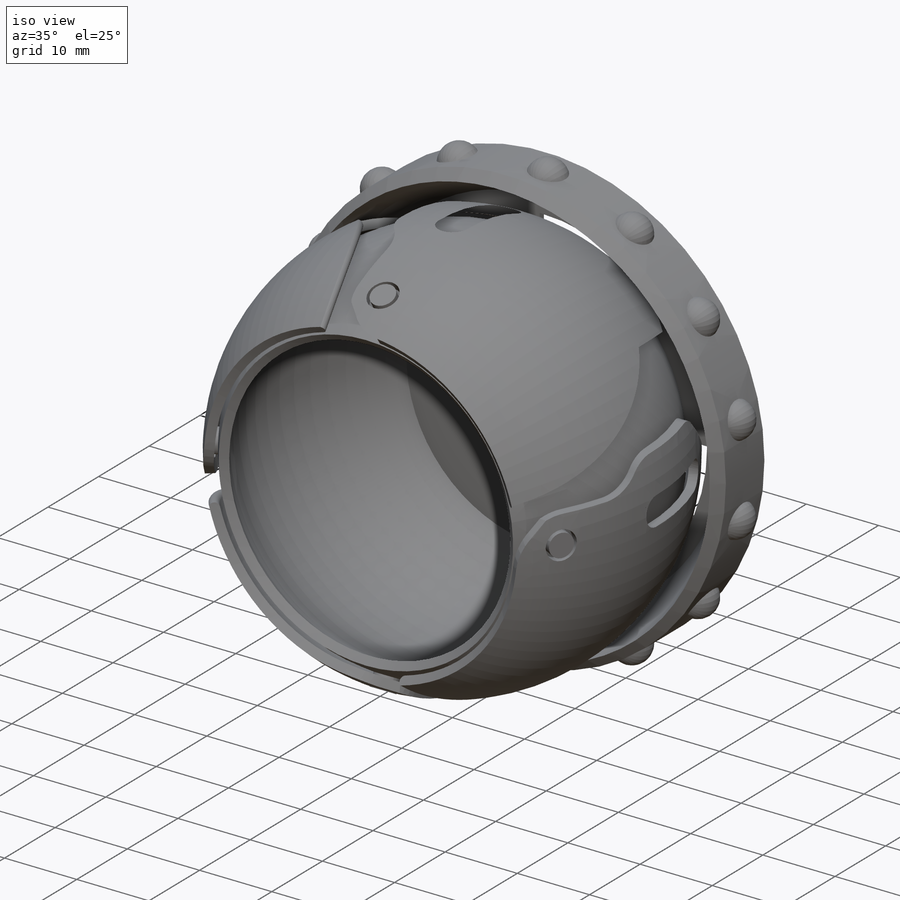
[diagram: iso view]
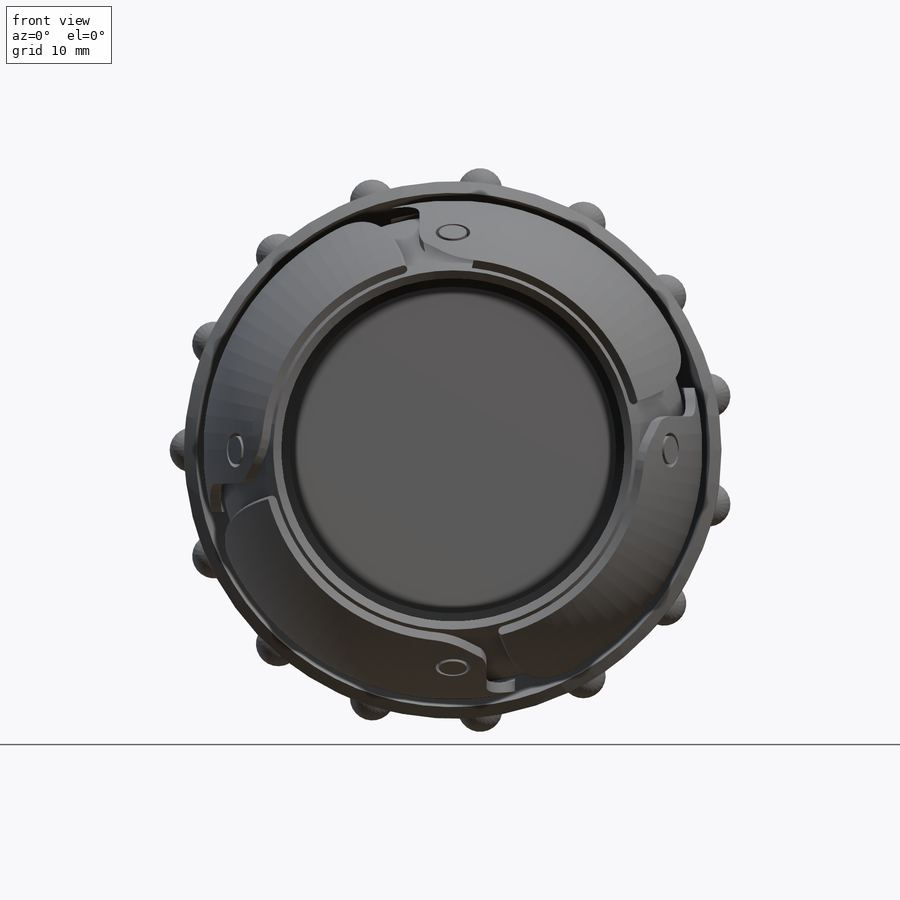
[diagram: front view]
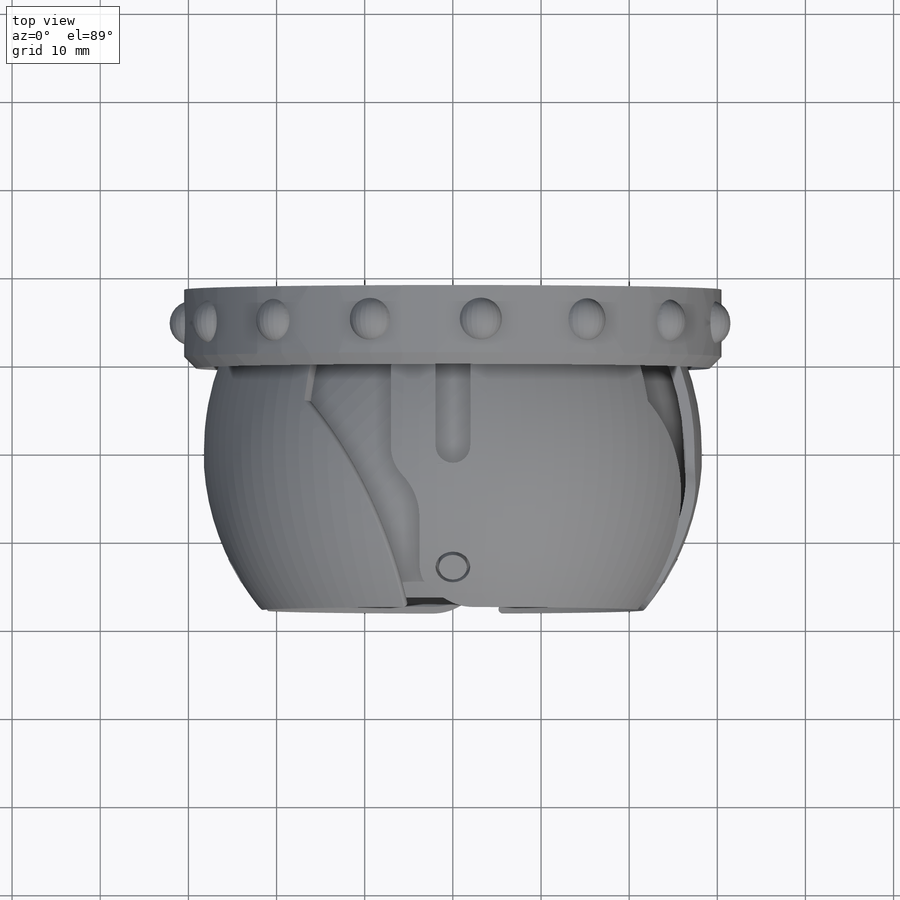
[diagram: top view]
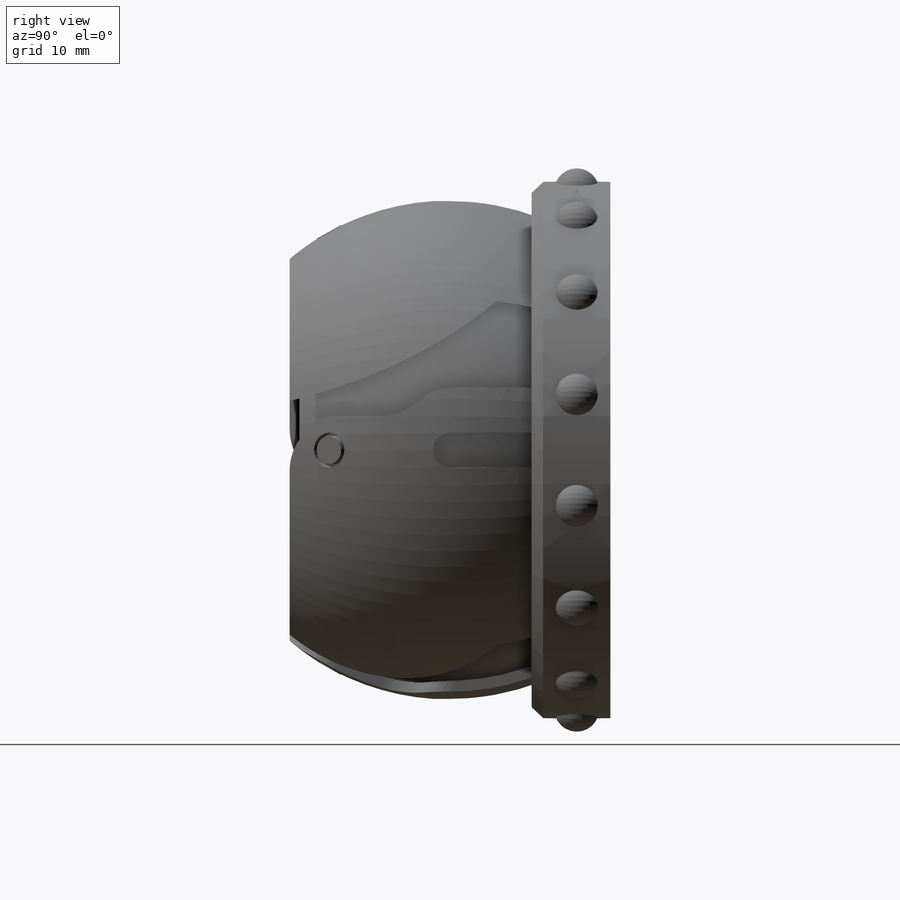
[diagram: right view]
SOLIDWORKS PART (.sldprt)
format: sldprt  version: not decoded by parser v0  size: 1,860,608 bytes
history: native  units: mm
features: sketch x18, revolve x7, plane x6, pattern_circular x6, cut_extrude x6, extrude x5, fillet x5, chamfer x3, material x1 (+11 scaffold rows collapsed)
feature tree (68):
  scaffold x11  (default folders/planes/origin — collapsed)
  material  "Material <not specified>"
  sketch  "Sketch1"  dims[c1.D1=~80.932191mm c1.D2=~57.865776mm c1.D3=~69.59016mm c1.D4=~59.465776mm c1.D5=~62.065776mm c1.D6=50.8mm c2.D1=1.0mm c2.D2=1.2mm c2.D3=1.2mm c2.D4=0.5mm c2.D5=0.7mm c2.D7=~19.393397mm c3.D7=50.0deg c3.D8=5.08mm c3.D9=12.7mm]
  revolve  "Revolve1"  Angle=360deg
  plane  "Plane1"
  sketch  "Sketch2"  dims[D1=3.175mm]
  extrude  "Boss-Extrude1"  Depth=1.7mm
  pattern_circular  "CirPattern1"  Count=4 Angle=360deg
  sketch  "Sketch3"
  revolve  "Revolve2"  Angle=360deg
  sketch  "Sketch4"  dims[c1.D2=49.53mm c1.D5=21.6662mm c1.D1=3.81mm c2.D2=~8.98762mm c2.D3=~28.45708mm c3.D3=40.0deg c3.D4=7.62mm c3.D6=20.2184mm c3.D7=~24.257085mm c4.D6=19.558mm c4.D4=~11.351091mm c4.D7=~0.143692mm c5.D4=~30.909091mm c6.D4=60.0deg]
  cut_extrude  "Cut-Extrude1"  [1 undecoded]
  sketch  "Sketch5"  dims[D1=0.381mm]
  cut_extrude  "Cut-Extrude2"  [1 undecoded]
  fillet  "Fillet4"  Radius=0.6604mm
  sketch  "Sketch8"  dims[D1=0.0mm D2=10.16mm D3=1.27mm D4=5.08mm D5=~14.556272mm D6=~9.716439mm]
  cut_extrude  "Cut-Extrude4"  [1 undecoded]
  plane  "Plane6"
  sketch  "Sketch18"
  cut_extrude  "Cut-Extrude8"  [1 undecoded]
  fillet  "Fillet1"  Radius=5.842mm
  sketch  "Sketch19"  dims[c1.D1=~2.177617mm c2.D1=45.0deg c2.D2=~3.582855mm c3.D2=60.0deg c4.D2=4.445mm]
  cut_extrude  "Cut-Extrude9"  Depth=2.54mm
  fillet  "Fillet5"  Radius=5.842mm
  chamfer  "Chamfer1"  Distance=8.255mm Angle=45deg
  fillet  "Fillet2"  Radius=3.175mm
  fillet  "Fillet3"  Radius=3.81mm
  sketch  "Sketch9"  dims[c1.D1=~28.641773mm c1.D2=28.8mm c2.D1=0.2mm c2.D2=2.54mm c2.D3=2.54mm]
  revolve  "Revolve3"  Angle=360deg
  plane  "Plane3"
  sketch  "Sketch10"  dims[D1=3.175mm]
  extrude  "Boss-Extrude2"  Depth=1.9mm
  pattern_circular  "CirPattern2"  Count=4 Angle=360deg
  chamfer  "Chamfer2"  Distance=5.08mm Angle=45deg
  pattern_circular  "CirPattern3"  Count=4 Angle=360deg
  sketch  "Sketch12"  dims[c1.D1=~42.488351mm c1.D6=~66.115429mm c2.D1=~25.12564mm c2.D5=~47.711279mm c3.D1=1.27mm c3.D2=1.27mm c3.D3=3.81mm c3.D5=72.0deg c3.D6=2.54mm c4.D1=2.54mm c4.D5=1.27mm c4.D3=2.54mm c4.D4=4.0]
  extrude  "Boss-Extrude3"  Depth=0.8mm
  plane  "Plane4"
  sketch  "Sketch13"  dims[D1=8.89mm D2=1.0mm]
  extrude  "Boss-Extrude4"  Depth=0.508mm
  pattern_circular  "CirPattern4"  Count=60 Angle=360deg
  plane  "Plane5"
  sketch  "Sketch15"
  cut_extrude  "Cut-Extrude7"  Depth=0.2mm
  sketch  "Sketch16"  dims[c1.D1=0.6mm c1.D2=~1.905207mm c2.D2=135.0deg c2.D3=30.48mm c2.D4=8.255mm c2.D5=~5.526654mm c3.D2=~0.490397mm c4.D2=135.0deg c4.D4=7.62mm c4.D5=~7.369478mm]
  revolve  "Revolve4"  Angle=360deg
  sketch  "Sketch17"  dims[D1=2.54mm D2=0.889mm]
  revolve  "Revolve5"  Angle=90deg
  pattern_circular  "CirPattern5"  Count=15 Angle=360deg
  sketch  "Sketch21"  dims[D1=0.3mm]
  revolve  "Revolve6"  Angle=360deg
  chamfer  "Chamfer3"  Distance=0.4318mm Angle=45deg
  plane  "Plane7"
  sketch  "Sketch22"  dims[D1=1.5875mm D2=0.4mm D3=1.9mm]
  revolve  "Revolve7"  Angle=360deg
  pattern_circular  "CirPattern6"  Count=4 Angle=360deg
  sketch  "Sketch20"  dims[D1=1.6mm D2=4.0]
  extrude  "Boss-Extrude5"  Depth=0.2mm
decode coverage: 43 of 50 modeling features carry decoded parameters
note: ~ marks probable driven/reference dimensions
note: 4 parameter values undecoded
summary: no parameter record found for 4 features
note: suppression state not decoded; provenance and decode notes live in map.json
